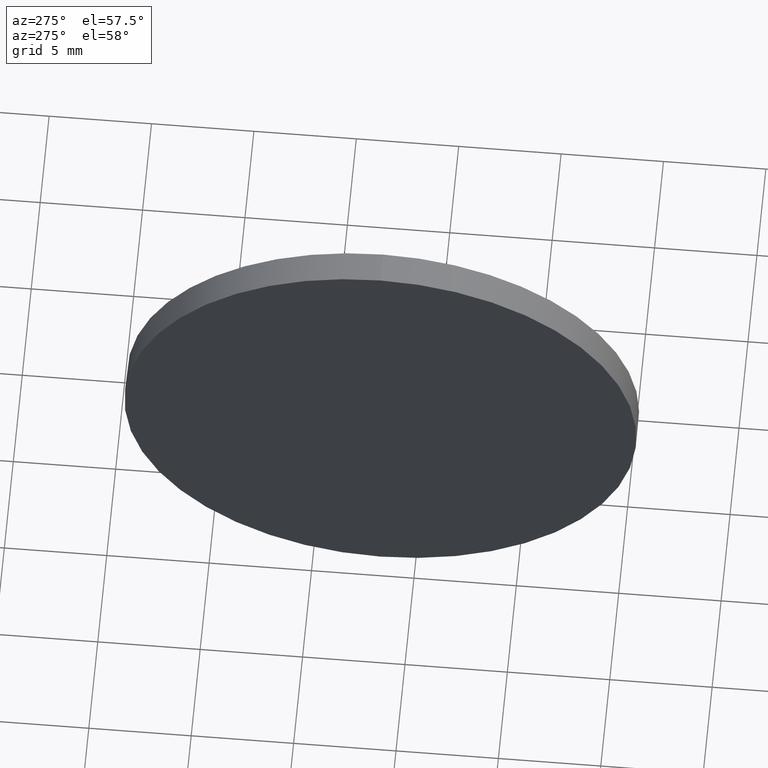
[diagram: clean part render]
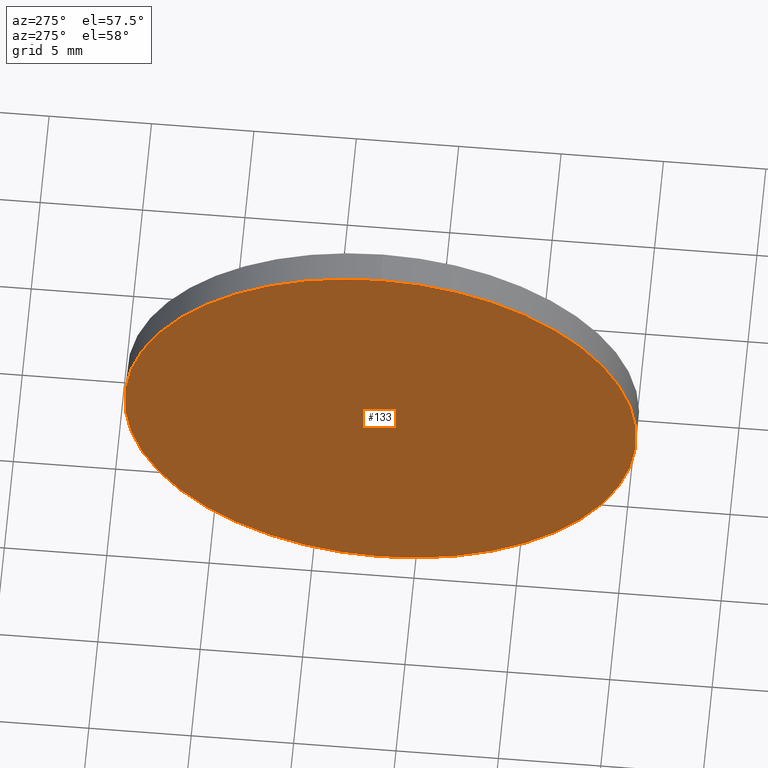
[diagram: same view with one face highlighted and labeled with its STEP entity id]
A machine part, auxiliary view. The second image highlights one B-rep face of the part: STEP entity #133.
In plain terms, the highlighted planar face has unit normal (1, 0, 0).
Its self-contained STEP definition (entity closure, byte-faithful):
#12 = DIRECTION ( 'NONE',  ( 1.000000000000000000, 0.0000000000000000000, 0.0000000000000000000 ) ) ;
#21 = CIRCLE ( 'NONE', #39, 12.50000000000001100 ) ;
#22 = VERTEX_POINT ( 'NONE', #105 ) ;
#23 = CARTESIAN_POINT ( 'NONE',  ( 590.7578549459785800, 196.7022830089343900, -12.50000000000001100 ) ) ;
#33 = EDGE_LOOP ( 'NONE', ( #140, #126 ) ) ;
#39 = AXIS2_PLACEMENT_3D ( 'NONE', #177, #92, #120 ) ;
#43 = CARTESIAN_POINT ( 'NONE',  ( 590.7578549459785800, 196.7022830089343900, 0.0000000000000000000 ) ) ;
#45 = AXIS2_PLACEMENT_3D ( 'NONE', #141, #12, #84 ) ;
#54 = DIRECTION ( 'NONE',  ( -1.000000000000000000, -0.0000000000000000000, -0.0000000000000000000 ) ) ;
#76 = VERTEX_POINT ( 'NONE', #23 ) ;
#81 = PLANE ( 'NONE',  #45 ) ;
#84 = DIRECTION ( 'NONE',  ( 0.0000000000000000000, 0.0000000000000000000, -1.000000000000000000 ) ) ;
#92 = DIRECTION ( 'NONE',  ( -1.000000000000000000, -0.0000000000000000000, -0.0000000000000000000 ) ) ;
#94 = EDGE_CURVE ( 'NONE', #22, #76, #21, .T. ) ;
#105 = CARTESIAN_POINT ( 'NONE',  ( 590.7578549459785800, 196.7022830089343900, 12.50000000000001100 ) ) ;
#110 = CIRCLE ( 'NONE', #116, 12.50000000000001100 ) ;
#116 = AXIS2_PLACEMENT_3D ( 'NONE', #43, #54, #163 ) ;
#120 = DIRECTION ( 'NONE',  ( 0.0000000000000000000, 0.0000000000000000000, 1.000000000000000000 ) ) ;
#126 = ORIENTED_EDGE ( 'NONE', *, *, #146, .T. ) ;
#133 = ADVANCED_FACE ( 'NONE', ( #168 ), #81, .F. ) ;
#140 = ORIENTED_EDGE ( 'NONE', *, *, #94, .T. ) ;
#141 = CARTESIAN_POINT ( 'NONE',  ( 590.7578549459785800, 196.7022830089343900, 0.0000000000000000000 ) ) ;
#146 = EDGE_CURVE ( 'NONE', #76, #22, #110, .T. ) ;
#163 = DIRECTION ( 'NONE',  ( 0.0000000000000000000, 0.0000000000000000000, 1.000000000000000000 ) ) ;
#168 = FACE_OUTER_BOUND ( 'NONE', #33, .T. ) ;
#177 = CARTESIAN_POINT ( 'NONE',  ( 590.7578549459785800, 196.7022830089343900, 0.0000000000000000000 ) ) ;